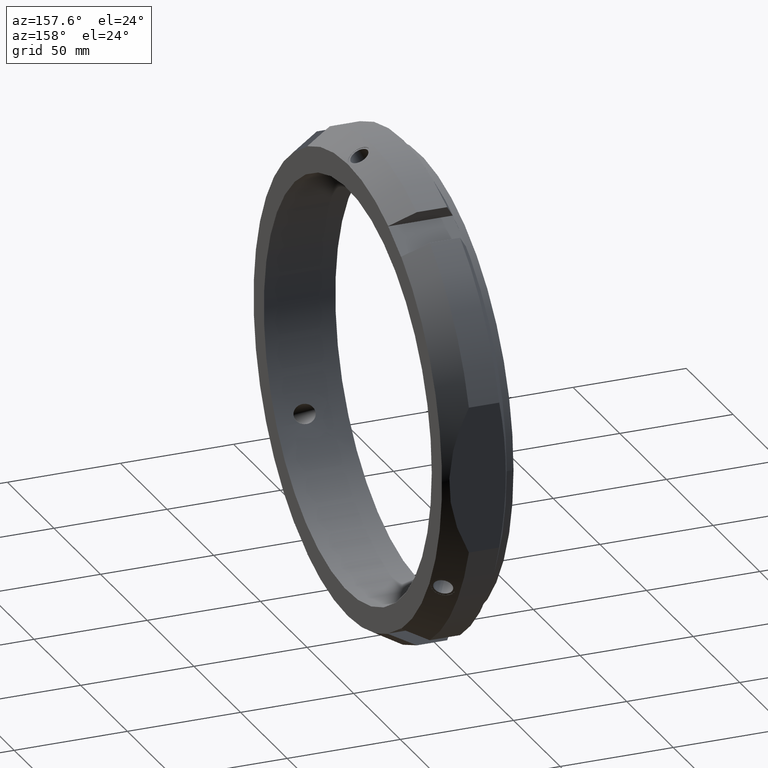
[diagram: clean part render]
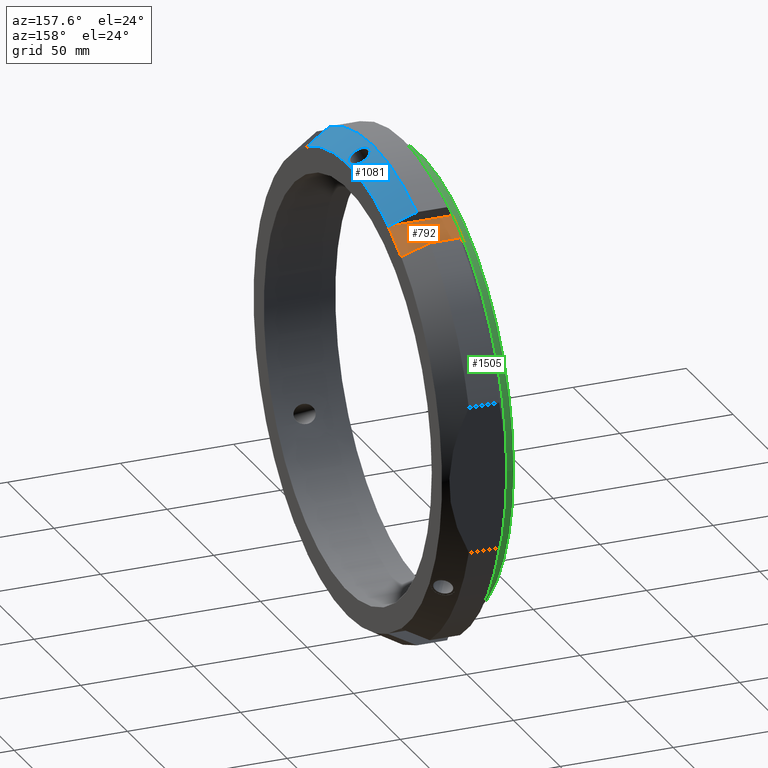
[diagram: same view with three faces highlighted in distinct colors, each labeled with its STEP entity id]
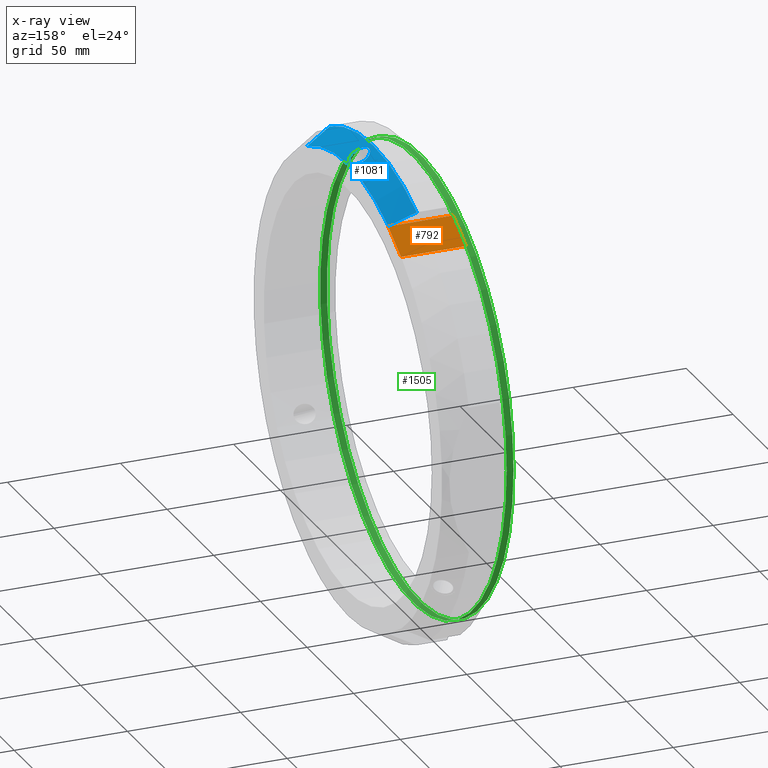
[diagram: x-ray of the same camera — body ghosted, the three highlighted faces saturated]
A machine part, auxiliary view with three faces highlighted in distinct colors.
The next image is the same camera in x-ray (body ghosted, the three faces saturated) — at least one of them is partly hidden behind the body in this view.
Their STEP definitions:

[orange] entity #792 — the highlighted planar face has unit normal (0, -0.5, -0.866).
#391=CARTESIAN_POINT('',(31.999999999999979,57.178203230275521,83.035553080336086));
#392=VERTEX_POINT('',#391);
#399=CARTESIAN_POINT('',(31.999999999999979,43.3217967697245,91.035553080336072));
#400=VERTEX_POINT('',#399);
#401=CARTESIAN_POINT('',(31.999999999999986,57.178203230275528,83.035553080336086));
#402=DIRECTION('',(0.0,-0.866025403784439,0.5));
#403=VECTOR('',#402,16.000000000000007);
#404=LINE('',#401,#403);
#405=EDGE_CURVE('',#392,#400,#404,.T.);
#728=CARTESIAN_POINT('',(3.472217761861559,57.178203230275514,83.035553080336101));
#729=VERTEX_POINT('',#728);
#745=CARTESIAN_POINT('',(3.472217761861559,57.178203230275521,83.035553080336086));
#746=DIRECTION('',(1.0,0.0,0.0));
#747=VECTOR('',#746,28.527782238138421);
#748=LINE('',#745,#747);
#749=EDGE_CURVE('',#729,#392,#748,.T.);
#762=CARTESIAN_POINT('',(0.0,43.3217967697245,91.035553080336072));
#763=DIRECTION('',(0.0,-0.499999999999999,-0.866025403784439));
#764=DIRECTION('',(0.0,0.866025403784439,-0.499999999999999));
#765=AXIS2_PLACEMENT_3D('',#762,#763,#764);
#766=PLANE('',#765);
#767=CARTESIAN_POINT('',(3.472217761861556,43.321796769724486,91.035553080336072));
#768=VERTEX_POINT('',#767);
#769=CARTESIAN_POINT('',(3.472217761861556,43.321796769724486,91.035553080336072));
#770=CARTESIAN_POINT('',(3.105711265134587,50.250000000166246,87.035553080240135));
#771=CARTESIAN_POINT('',(3.472217761861559,57.178203230275514,83.035553080336101));
#779=(BOUNDED_CURVE()B_SPLINE_CURVE(2,(#769,#770,#771),.UNSPECIFIED.,.F.,.U.)B_SPLINE_CURVE_WITH_KNOTS((3,3),(3.005923006737308,4.668276191441848),.UNSPECIFIED.)CURVE()GEOMETRIC_REPRESENTATION_ITEM()RATIONAL_B_SPLINE_CURVE((1.033191756287484,1.036459985006051,1.033191756287484))REPRESENTATION_ITEM(''));
#780=EDGE_CURVE('',#768,#729,#779,.T.);
#781=ORIENTED_EDGE('',*,*,#780,.F.);
#782=CARTESIAN_POINT('',(3.472217761861556,43.3217967697245,91.035553080336072));
#783=DIRECTION('',(1.0,0.0,0.0));
#784=VECTOR('',#783,28.527782238138421);
#785=LINE('',#782,#784);
#786=EDGE_CURVE('',#768,#400,#785,.T.);
#787=ORIENTED_EDGE('',*,*,#786,.T.);
#788=ORIENTED_EDGE('',*,*,#405,.F.);
#789=ORIENTED_EDGE('',*,*,#749,.F.);
#790=EDGE_LOOP('',(#781,#787,#788,#789));
#791=FACE_OUTER_BOUND('',#790,.T.);
#792=ADVANCED_FACE('',(#791),#766,.F.);

[blue] entity #1081 — the highlighted conical surface has half-angle 30 deg.
#407=CARTESIAN_POINT('',(31.999999999999979,43.413131674551963,91.193749776001738));
#408=VERTEX_POINT('',#407);
#415=CARTESIAN_POINT('',(31.999999999999979,-43.413131674552048,91.193749776001681));
#416=VERTEX_POINT('',#415);
#417=CARTESIAN_POINT('',(31.999999999999979,0.0,0.0));
#418=DIRECTION('',(1.0,0.0,0.0));
#419=DIRECTION('',(0.0,1.0,0.0));
#420=AXIS2_PLACEMENT_3D('',#417,#418,#419);
#421=CIRCLE('',#420,101.00000000000001);
#422=EDGE_CURVE('',#408,#416,#421,.T.);
#813=CARTESIAN_POINT('',(20.741669750802298,46.672752917912575,96.839579382933522));
#814=VERTEX_POINT('',#813);
#821=CARTESIAN_POINT('',(31.999999999999979,43.413131674551963,91.193749776001738));
#822=CARTESIAN_POINT('',(26.547365011072763,44.992132850944522,93.928660038724857));
#823=CARTESIAN_POINT('',(20.741669750802284,46.672752917912597,96.839579382933522));
#831=(BOUNDED_CURVE()B_SPLINE_CURVE(2,(#821,#822,#823),.UNSPECIFIED.,.F.,.U.)B_SPLINE_CURVE_WITH_KNOTS((3,3),(0.675008007733851,1.9549844275084),.UNSPECIFIED.)CURVE()GEOMETRIC_REPRESENTATION_ITEM()RATIONAL_B_SPLINE_CURVE((1.000516048145301,1.000747299347822,1.0))REPRESENTATION_ITEM(''));
#832=EDGE_CURVE('',#408,#814,#831,.T.);
#868=CARTESIAN_POINT('',(20.741669750802263,-46.672752917912767,96.839579382933451));
#869=VERTEX_POINT('',#868);
#870=CARTESIAN_POINT('',(20.741669750802284,-46.672752917912746,96.839579382933437));
#871=CARTESIAN_POINT('',(26.547365013991531,-44.992132850099296,93.928660037260613));
#872=CARTESIAN_POINT('',(31.999999999999979,-43.413131674552048,91.193749776001681));
#880=(BOUNDED_CURVE()B_SPLINE_CURVE(2,(#870,#871,#872),.UNSPECIFIED.,.F.,.U.)B_SPLINE_CURVE_WITH_KNOTS((3,3),(0.0,1.279976419455061),.UNSPECIFIED.)CURVE()GEOMETRIC_REPRESENTATION_ITEM()RATIONAL_B_SPLINE_CURVE((1.0,1.000747299425635,1.000516048199279))REPRESENTATION_ITEM(''));
#881=EDGE_CURVE('',#869,#416,#880,.T.);
#994=CARTESIAN_POINT('',(20.741669750802288,0.0,0.0));
#995=DIRECTION('',(1.0,0.0,0.0));
#996=DIRECTION('',(0.0,1.0,0.0));
#997=AXIS2_PLACEMENT_3D('',#994,#995,#996);
#998=CIRCLE('',#997,107.5);
#999=EDGE_CURVE('',#814,#869,#998,.T.);
#1029=CARTESIAN_POINT('',(26.370834875401137,0.0,0.0));
#1030=DIRECTION('',(-1.0,0.0,0.0));
#1031=DIRECTION('',(0.0,1.0,0.0));
#1032=AXIS2_PLACEMENT_3D('',#1029,#1030,#1031);
#1033=CONICAL_SURFACE('',#1032,104.25,29.999999999999979);
#1034=ORIENTED_EDGE('',*,*,#832,.T.);
#1035=ORIENTED_EDGE('',*,*,#999,.T.);
#1036=ORIENTED_EDGE('',*,*,#881,.T.);
#1037=ORIENTED_EDGE('',*,*,#422,.F.);
#1038=EDGE_LOOP('',(#1034,#1035,#1036,#1037));
#1039=FACE_OUTER_BOUND('',#1038,.T.);
#1040=CARTESIAN_POINT('',(27.038468244131803,5.098463651419537,103.73933048692291));
#1041=VERTEX_POINT('',#1040);
#1042=CARTESIAN_POINT('',(27.038468244131803,5.098463651419537,103.73933048692291));
#1043=CARTESIAN_POINT('',(27.584055604888796,5.08300129457845,103.42471521139815));
#1044=CARTESIAN_POINT('',(28.166672250099587,4.942635115649402,103.09507174386097));
#1045=CARTESIAN_POINT('',(29.240151374842039,4.407385942435186,102.49899978638994));
#1046=CARTESIAN_POINT('',(29.730879072857704,4.012507138429282,102.23232483585036));
#1047=CARTESIAN_POINT('',(30.506260109774459,3.110907908096887,101.81586090077263));
#1048=CARTESIAN_POINT('',(30.843457152293091,2.543066069649297,101.63779807132157));
#1049=CARTESIAN_POINT('',(31.290910229302817,1.30260834798242,101.4029093620684));
#1050=CARTESIAN_POINT('',(31.401012450414854,0.629985827302218,101.34582562299423));
#1051=CARTESIAN_POINT('',(31.401012450414854,-0.629985827302218,101.34582562299423));
#1052=CARTESIAN_POINT('',(31.290910229302824,-1.302608347982421,101.4029093620684));
#1053=CARTESIAN_POINT('',(30.843457152293098,-2.543066069649298,101.63779807132157));
#1054=CARTESIAN_POINT('',(30.506260109774459,-3.110907908096887,101.81586090077263));
#1055=CARTESIAN_POINT('',(29.7308790728577,-4.012507138429282,102.23232483585036));
#1056=CARTESIAN_POINT('',(29.240151374842036,-4.407385942435187,102.49899978638994));
#1057=CARTESIAN_POINT('',(28.166672250099587,-4.942635115649402,103.09507174386097));
#1058=CARTESIAN_POINT('',(27.584055604888803,-5.083001294578448,103.42471521139817));
#1059=CARTESIAN_POINT('',(26.47474192677938,-5.114440079956154,104.06440566903183));
#1060=CARTESIAN_POINT('',(25.874236473617987,-4.99930203055456,104.4174426165747));
#1061=CARTESIAN_POINT('',(24.771431706486212,-4.494443747415762,105.07767949194897));
#1062=CARTESIAN_POINT('',(24.26897289243491,-4.104727824228371,105.38461626436339));
#1063=CARTESIAN_POINT('',(23.475918539706587,-3.195735644906239,105.87417173310689));
#1064=CARTESIAN_POINT('',(23.133306443399437,-2.616867737400951,106.08884037431066));
#1065=CARTESIAN_POINT('',(22.679193284463945,-1.344470771718208,106.37479186231387));
#1066=CARTESIAN_POINT('',(22.567553331813549,-0.650935320554801,106.44582562299422));
#1067=CARTESIAN_POINT('',(22.567553331813549,0.650935320554801,106.44582562299422));
#1068=CARTESIAN_POINT('',(22.679193284463945,1.344470771718208,106.37479186231388));
#1069=CARTESIAN_POINT('',(23.133306443399437,2.616867737400951,106.08884037431068));
#1070=CARTESIAN_POINT('',(23.475918539706587,3.195735644906238,105.87417173310689));
#1071=CARTESIAN_POINT('',(24.26897289243491,4.104727824228371,105.38461626436339));
#1072=CARTESIAN_POINT('',(24.771431706486212,4.494443747415762,105.07767949194898));
#1073=CARTESIAN_POINT('',(25.874236473617987,4.999302030554556,104.41744261657473));
#1074=CARTESIAN_POINT('',(26.474741926779366,5.114440079956153,104.0644056690318));
#1075=CARTESIAN_POINT('',(27.038468244131806,5.098463651419536,103.73933048692291));
#1076=B_SPLINE_CURVE_WITH_KNOTS('',3,(#1042,#1043,#1044,#1045,#1046,#1047,#1048,#1049,#1050,#1051,#1052,#1053,#1054,#1055,#1056,#1057,#1058,#1059,#1060,#1061,#1062,#1063,#1064,#1065,#1066,#1067,#1068,#1069,#1070,#1071,#1072,#1073,#1074,#1075),.UNSPECIFIED.,.T.,.U.,(4,2,2,2,2,2,2,2,2,2,2,2,2,2,2,2,4),(0.0,0.188997005759704,0.377994011519408,0.566989759710074,0.755985507900739,0.944981256091404,1.13397700428207,1.322974010041774,1.511971015801478,1.707251540445101,1.902532065088723,2.097812661255163,2.293093257421603,2.488373853588044,2.683654449754484,2.878934974398107,3.074215499041729),.UNSPECIFIED.);
#1077=EDGE_CURVE('',#1041,#1041,#1076,.T.);
#1078=ORIENTED_EDGE('',*,*,#1077,.T.);
#1079=EDGE_LOOP('',(#1078));
#1080=FACE_BOUND('',#1079,.T.);
#1081=ADVANCED_FACE('',(#1039,#1080),#1033,.T.);

[green] entity #1505 — the highlighted cylindrical surface (bore or boss wall) has radius 100 mm, axis along (1, 0, 0).
#1471=CARTESIAN_POINT('',(-3.108624E-014,100.0,0.0));
#1472=VERTEX_POINT('',#1471);
#1473=CARTESIAN_POINT('',(-3.108624E-014,0.0,0.0));
#1474=DIRECTION('',(1.0,0.0,0.0));
#1475=DIRECTION('',(0.0,1.0,0.0));
#1476=AXIS2_PLACEMENT_3D('',#1473,#1474,#1475);
#1477=CIRCLE('',#1476,100.0);
#1478=EDGE_CURVE('',#1472,#1472,#1477,.T.);
#1486=CARTESIAN_POINT('',(1.499999999999969,0.0,0.0));
#1487=DIRECTION('',(1.0,0.0,0.0));
#1488=DIRECTION('',(0.0,1.0,0.0));
#1489=AXIS2_PLACEMENT_3D('',#1486,#1487,#1488);
#1490=CYLINDRICAL_SURFACE('',#1489,100.0);
#1491=CARTESIAN_POINT('',(2.999999999999969,100.0,0.0));
#1492=VERTEX_POINT('',#1491);
#1493=CARTESIAN_POINT('',(2.999999999999969,0.0,0.0));
#1494=DIRECTION('',(1.0,0.0,0.0));
#1495=DIRECTION('',(0.0,1.0,0.0));
#1496=AXIS2_PLACEMENT_3D('',#1493,#1494,#1495);
#1497=CIRCLE('',#1496,100.0);
#1498=EDGE_CURVE('',#1492,#1492,#1497,.T.);
#1499=ORIENTED_EDGE('',*,*,#1498,.F.);
#1500=EDGE_LOOP('',(#1499));
#1501=FACE_OUTER_BOUND('',#1500,.T.);
#1502=ORIENTED_EDGE('',*,*,#1478,.T.);
#1503=EDGE_LOOP('',(#1502));
#1504=FACE_BOUND('',#1503,.T.);
#1505=ADVANCED_FACE('',(#1501,#1504),#1490,.T.);